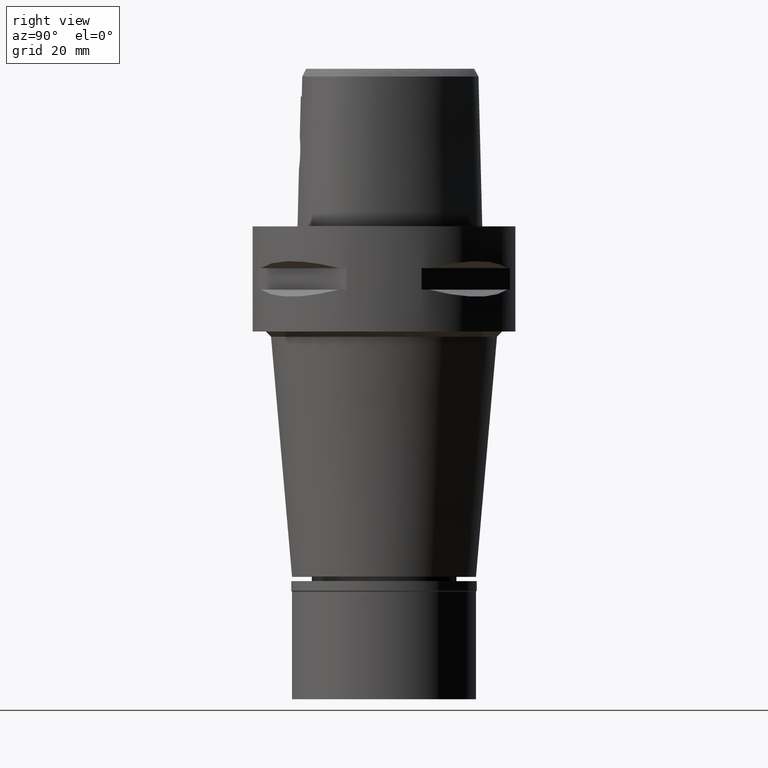
[diagram: clean part render]
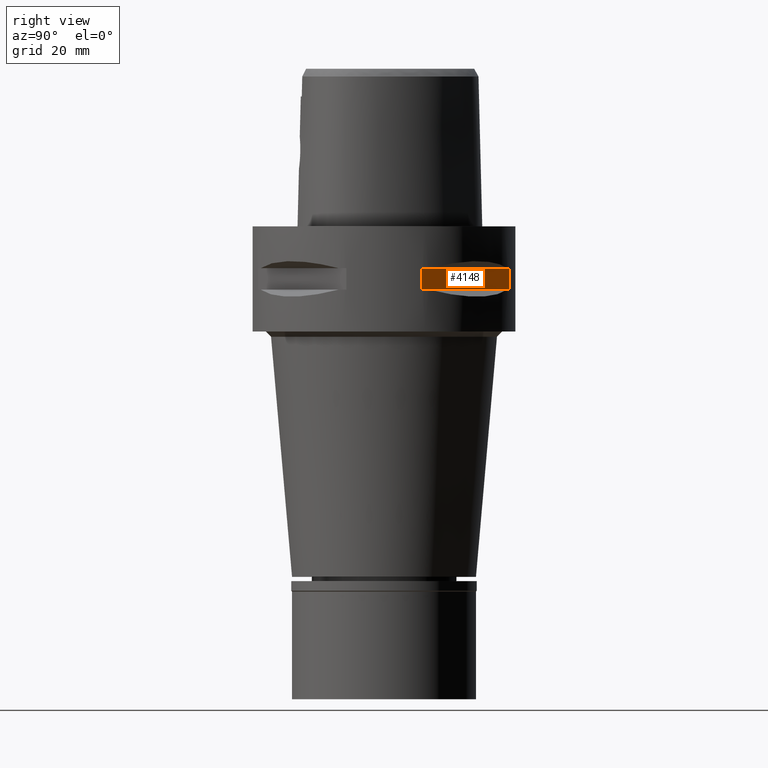
[diagram: same view with one face highlighted and labeled with its STEP entity id]
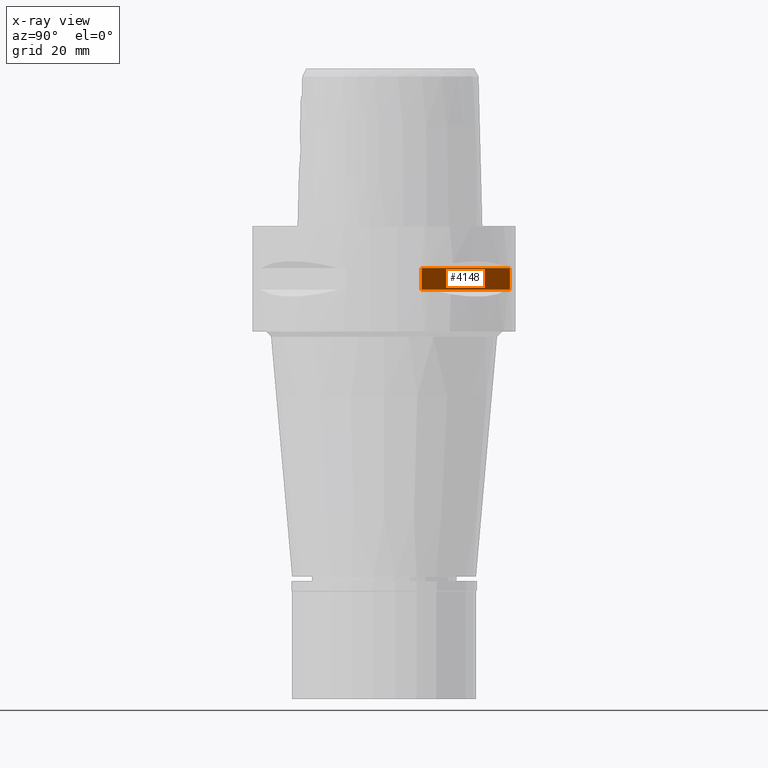
[diagram: x-ray of the same camera — body ghosted, the highlighted face saturated]
A machine part, right view. The second image highlights one B-rep face of the part: STEP entity #4148.
The next image is the same camera in x-ray: the body ghosted, the highlighted face saturated — about 0% of this face is hidden behind the body in this view.
In plain terms, the highlighted planar face has unit normal (-0.7071, -0.7071, 0).
Its self-contained STEP definition (entity closure, byte-faithful):
#146 = CARTESIAN_POINT ( 'NONE',  ( 23.95277699797999915, 7.159921374230999724, -12.05000000000000071 ) ) ;
#353 = DIRECTION ( 'NONE',  ( 0.0000000000000000000, 0.0000000000000000000, 1.000000000000000000 ) ) ;
#405 = ORIENTED_EDGE ( 'NONE', *, *, #2851, .T. ) ;
#561 = VERTEX_POINT ( 'NONE', #2748 ) ;
#610 = LINE ( 'NONE', #3647, #3644 ) ;
#914 = EDGE_CURVE ( 'NONE', #1100, #561, #2253, .T. ) ;
#1008 = LINE ( 'NONE', #2123, #1418 ) ;
#1028 = AXIS2_PLACEMENT_3D ( 'NONE', #4090, #4829, #3028 ) ;
#1100 = VERTEX_POINT ( 'NONE', #2248 ) ;
#1266 = VERTEX_POINT ( 'NONE', #2592 ) ;
#1418 = VECTOR ( 'NONE', #2792, 1000.000000000000000 ) ;
#1456 = EDGE_LOOP ( 'NONE', ( #2853, #405, #3539, #3737 ) ) ;
#1635 = DIRECTION ( 'NONE',  ( -0.7071067811865474617, 0.7071067811865474617, 0.0000000000000000000 ) ) ;
#1665 = VECTOR ( 'NONE', #353, 1000.000000000000000 ) ;
#2048 = DIRECTION ( 'NONE',  ( -0.7071067811865474617, 0.7071067811865474617, 0.0000000000000000000 ) ) ;
#2073 = CARTESIAN_POINT ( 'NONE',  ( 23.95277699797999915, 7.159921374230999724, -12.05000000000000071 ) ) ;
#2123 = CARTESIAN_POINT ( 'NONE',  ( 23.95277699797999915, 7.159921374230999724, -7.950000000000000178 ) ) ;
#2248 = CARTESIAN_POINT ( 'NONE',  ( 7.159921374235000080, 23.95277699797999915, -12.05000000000000071 ) ) ;
#2253 = LINE ( 'NONE', #3751, #1665 ) ;
#2592 = CARTESIAN_POINT ( 'NONE',  ( 23.95277699797999915, 7.159921374235000080, -7.950000000000000178 ) ) ;
#2595 = VECTOR ( 'NONE', #2048, 1000.000000000000114 ) ;
#2748 = CARTESIAN_POINT ( 'NONE',  ( 7.159921374230999724, 23.95277699797999915, -7.950000000000000178 ) ) ;
#2792 = DIRECTION ( 'NONE',  ( 0.0000000000000000000, 0.0000000000000000000, -1.000000000000000000 ) ) ;
#2851 = EDGE_CURVE ( 'NONE', #1266, #4648, #1008, .T. ) ;
#2853 = ORIENTED_EDGE ( 'NONE', *, *, #2897, .F. ) ;
#2897 = EDGE_CURVE ( 'NONE', #1266, #561, #610, .T. ) ;
#3028 = DIRECTION ( 'NONE',  ( -0.7071067811865475727, 0.7071067811865475727, 0.0000000000000000000 ) ) ;
#3312 = EDGE_CURVE ( 'NONE', #4648, #1100, #4005, .T. ) ;
#3339 = PLANE ( 'NONE',  #1028 ) ;
#3539 = ORIENTED_EDGE ( 'NONE', *, *, #3312, .T. ) ;
#3644 = VECTOR ( 'NONE', #1635, 1000.000000000000114 ) ;
#3647 = CARTESIAN_POINT ( 'NONE',  ( 23.95277699797999915, 7.159921374230999724, -7.950000000000000178 ) ) ;
#3737 = ORIENTED_EDGE ( 'NONE', *, *, #914, .T. ) ;
#3751 = CARTESIAN_POINT ( 'NONE',  ( 7.159921374230999724, 23.95277699797999915, -12.05000000000000071 ) ) ;
#4005 = LINE ( 'NONE', #2073, #2595 ) ;
#4090 = CARTESIAN_POINT ( 'NONE',  ( 4.949747468305999654, 26.16295090389999700, -7.950000000000000178 ) ) ;
#4148 = ADVANCED_FACE ( 'NONE', ( #4156 ), #3339, .F. ) ;
#4156 = FACE_OUTER_BOUND ( 'NONE', #1456, .T. ) ;
#4648 = VERTEX_POINT ( 'NONE', #146 ) ;
#4829 = DIRECTION ( 'NONE',  ( -0.7071067811865475727, -0.7071067811865475727, 0.0000000000000000000 ) ) ;